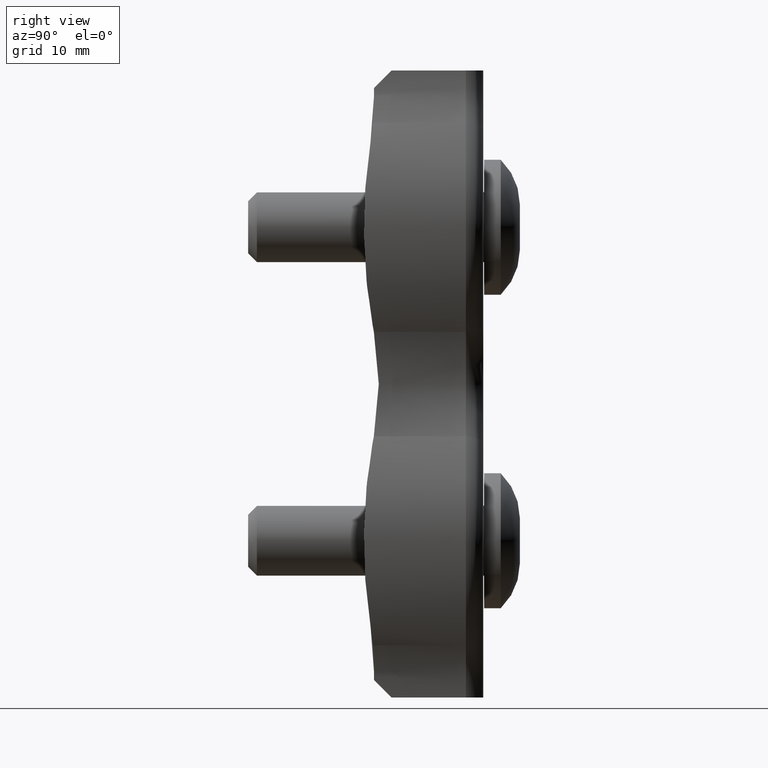
[diagram: clean part render]
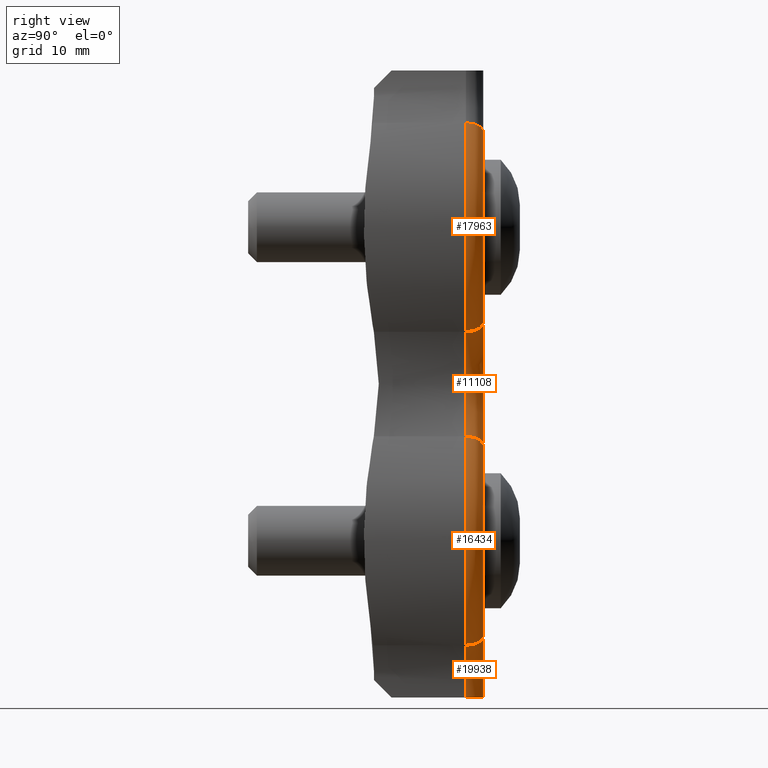
[diagram: same view with one multi-face feature highlighted, each face labeled with its STEP entity id]
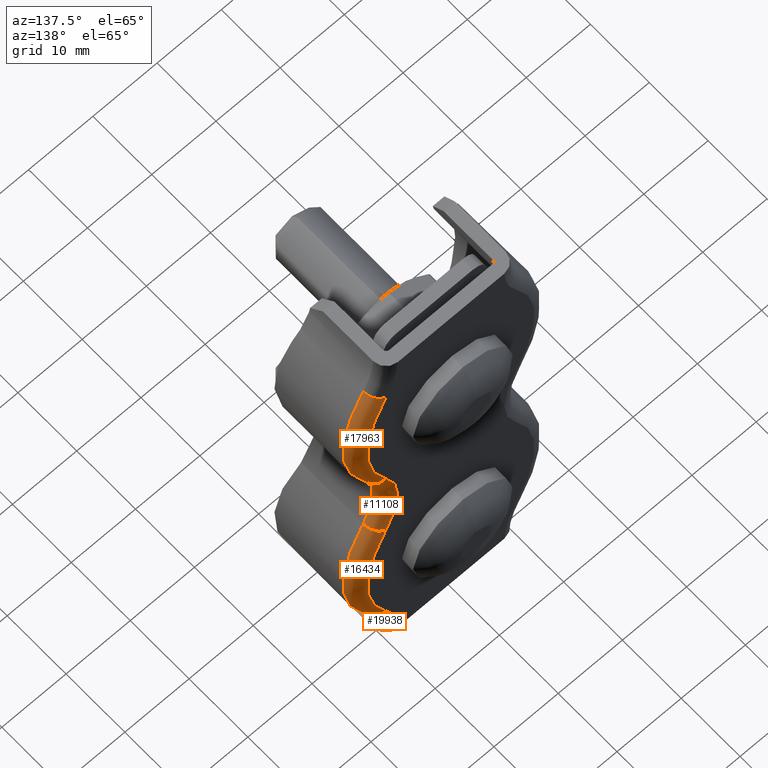
[diagram: same view with one multi-face feature highlighted, each face labeled with its STEP entity id]
A machine part, right view. The highlighted faces form ONE feature: a constant-radius fillet chain: 4 tangent blend faces with common blend radius 2 mm. The faces share edges in the B-rep.
A second angle (auxiliary view) of the same feature is appended — it is thin or edge-on in the first view.
Their STEP definitions:
[1] entity #11108 (Torus):
#33 = CIRCLE ( 'NONE', #21364, 12.27269503546099116 ) ;
#212 = DIRECTION ( 'NONE',  ( -0.8723453436967265606, 0.000000000000000000, -0.4888901730763671183 ) ) ;
#575 = CARTESIAN_POINT ( 'NONE',  ( 22.57269503546099187, -0.2000000000000000944, 0.000000000000000000 ) ) ;
#3490 = AXIS2_PLACEMENT_3D ( 'NONE', #19204, #15218, #4217 ) ;
#3506 = DIRECTION ( 'NONE',  ( -0.8723453436967263386, 0.000000000000000000, 0.4888901730763674514 ) ) ;
#4217 = DIRECTION ( 'NONE',  ( 0.000000000000000000, 0.000000000000000000, 1.000000000000000000 ) ) ;
#5278 = DIRECTION ( 'NONE',  ( 0.000000000000000000, 0.000000000000000000, 1.000000000000000000 ) ) ;
#5942 = ORIENTED_EDGE ( 'NONE', *, *, #19564, .T. ) ;
#8020 = DIRECTION ( 'NONE',  ( 0.000000000000000000, 0.000000000000000000, 1.000000000000000000 ) ) ;
#9083 = TOROIDAL_SURFACE ( 'NONE', #3490, 14.27269503546099116, 2.000000000000000000 ) ;
#9460 = CIRCLE ( 'NONE', #20300, 2.000000000000000000 ) ;
#9638 = DIRECTION ( 'NONE',  ( 0.4888901730763675069, 0.000000000000000000, -0.8723453436967264496 ) ) ;
#9681 = AXIS2_PLACEMENT_3D ( 'NONE', #16525, #24067, #5278 ) ;
#10771 = CARTESIAN_POINT ( 'NONE',  ( 11.86666666666666714, -0.2000000000000000944, -6.000000000000000888 ) ) ;
#11000 = CARTESIAN_POINT ( 'NONE',  ( 10.12197597927321446, 1.800000000000000044, -6.977780346152735902 ) ) ;
#11108 = ADVANCED_FACE ( 'NONE', ( #19390 ), #9083, .T. ) ;
#11172 = VERTEX_POINT ( 'NONE', #19698 ) ;
#11819 = DIRECTION ( 'NONE',  ( 0.000000000000000000, 1.000000000000000000, 0.000000000000000000 ) ) ;
#14748 = CARTESIAN_POINT ( 'NONE',  ( 10.12197597927321446, -0.2000000000000000944, 6.977780346152735014 ) ) ;
#15218 = DIRECTION ( 'NONE',  ( 0.000000000000000000, 1.000000000000000000, 0.000000000000000000 ) ) ;
#15611 = VERTEX_POINT ( 'NONE', #11000 ) ;
#15960 = AXIS2_PLACEMENT_3D ( 'NONE', #14748, #24044, #3506 ) ;
#15964 = VERTEX_POINT ( 'NONE', #19618 ) ;
#16525 = CARTESIAN_POINT ( 'NONE',  ( 22.57269503546099187, 1.800000000000000044, 0.000000000000000000 ) ) ;
#16531 = ORIENTED_EDGE ( 'NONE', *, *, #22311, .F. ) ;
#17743 = CIRCLE ( 'NONE', #15960, 2.000000000000000444 ) ;
#18845 = EDGE_CURVE ( 'NONE', #11172, #15611, #21579, .T. ) ;
#19204 = CARTESIAN_POINT ( 'NONE',  ( 22.57269503546099187, -0.2000000000000000944, 0.000000000000000000 ) ) ;
#19390 = FACE_OUTER_BOUND ( 'NONE', #20740, .T. ) ;
#19564 = EDGE_CURVE ( 'NONE', #11172, #15964, #17743, .T. ) ;
#19618 = CARTESIAN_POINT ( 'NONE',  ( 11.86666666666667069, -0.2000000000000000944, 5.999999999999998224 ) ) ;
#19698 = CARTESIAN_POINT ( 'NONE',  ( 10.12197597927321446, 1.800000000000000044, 6.977780346152735014 ) ) ;
#20284 = ORIENTED_EDGE ( 'NONE', *, *, #18845, .F. ) ;
#20300 = AXIS2_PLACEMENT_3D ( 'NONE', #22693, #9638, #212 ) ;
#20740 = EDGE_LOOP ( 'NONE', ( #5942, #20982, #16531, #20284 ) ) ;
#20982 = ORIENTED_EDGE ( 'NONE', *, *, #24182, .F. ) ;
#21364 = AXIS2_PLACEMENT_3D ( 'NONE', #575, #11819, #8020 ) ;
#21579 = CIRCLE ( 'NONE', #9681, 14.27269503546099116 ) ;
#21614 = VERTEX_POINT ( 'NONE', #10771 ) ;
#22311 = EDGE_CURVE ( 'NONE', #15611, #21614, #9460, .T. ) ;
#22693 = CARTESIAN_POINT ( 'NONE',  ( 10.12197597927321446, -0.2000000000000000944, -6.977780346152735902 ) ) ;
#24044 = DIRECTION ( 'NONE',  ( -0.4888901730763675069, 0.000000000000000000, -0.8723453436967264496 ) ) ;
#24067 = DIRECTION ( 'NONE',  ( -0.000000000000000000, -1.000000000000000000, -0.000000000000000000 ) ) ;
#24182 = EDGE_CURVE ( 'NONE', #21614, #15964, #33, .T. ) ;
[2] entity #16434 (Torus):
#16 = CARTESIAN_POINT ( 'NONE',  ( 10.12197597927321446, 1.800000000000000044, -29.02221965384726232 ) ) ;
#212 = DIRECTION ( 'NONE',  ( -0.8723453436967265606, 0.000000000000000000, -0.4888901730763671183 ) ) ;
#2211 = TOROIDAL_SURFACE ( 'NONE', #8703, 22.54539007092198943, 2.000000000000000000 ) ;
#4318 = ORIENTED_EDGE ( 'NONE', *, *, #19601, .F. ) ;
#4871 = EDGE_LOOP ( 'NONE', ( #19424, #14828, #19887, #4318 ) ) ;
#6092 = AXIS2_PLACEMENT_3D ( 'NONE', #20458, #7357, #20534 ) ;
#6393 = VERTEX_POINT ( 'NONE', #16811 ) ;
#6500 = EDGE_CURVE ( 'NONE', #6393, #21614, #11083, .T. ) ;
#7167 = AXIS2_PLACEMENT_3D ( 'NONE', #20391, #16823, #7206 ) ;
#7206 = DIRECTION ( 'NONE',  ( 0.000000000000000000, 0.000000000000000000, 1.000000000000000000 ) ) ;
#7357 = DIRECTION ( 'NONE',  ( -0.000000000000000000, -1.000000000000000000, -0.000000000000000000 ) ) ;
#8703 = AXIS2_PLACEMENT_3D ( 'NONE', #9791, #11663, #21289 ) ;
#9460 = CIRCLE ( 'NONE', #20300, 2.000000000000000000 ) ;
#9638 = DIRECTION ( 'NONE',  ( 0.4888901730763675069, 0.000000000000000000, -0.8723453436967264496 ) ) ;
#9791 = CARTESIAN_POINT ( 'NONE',  ( -9.545390070921987657, -0.2000000000000000944, -18.00000000000000000 ) ) ;
#10397 = DIRECTION ( 'NONE',  ( -0.4888901730763667852, 0.000000000000000000, -0.8723453436967266716 ) ) ;
#10771 = CARTESIAN_POINT ( 'NONE',  ( 11.86666666666666714, -0.2000000000000000944, -6.000000000000000888 ) ) ;
#11000 = CARTESIAN_POINT ( 'NONE',  ( 10.12197597927321446, 1.800000000000000044, -6.977780346152735902 ) ) ;
#11083 = CIRCLE ( 'NONE', #6092, 24.54539007092198943 ) ;
#11663 = DIRECTION ( 'NONE',  ( 0.000000000000000000, 1.000000000000000000, 0.000000000000000000 ) ) ;
#12204 = FACE_OUTER_BOUND ( 'NONE', #4871, .T. ) ;
#14054 = DIRECTION ( 'NONE',  ( -0.8723453436967268937, 0.000000000000000000, 0.4888901730763663966 ) ) ;
#14258 = CIRCLE ( 'NONE', #18030, 1.999999999999999334 ) ;
#14828 = ORIENTED_EDGE ( 'NONE', *, *, #6500, .F. ) ;
#15291 = VERTEX_POINT ( 'NONE', #16 ) ;
#15611 = VERTEX_POINT ( 'NONE', #11000 ) ;
#15918 = EDGE_CURVE ( 'NONE', #15291, #6393, #14258, .T. ) ;
#16434 = ADVANCED_FACE ( 'NONE', ( #12204 ), #2211, .T. ) ;
#16811 = CARTESIAN_POINT ( 'NONE',  ( 11.86666666666667069, -0.2000000000000000944, -30.00000000000000000 ) ) ;
#16823 = DIRECTION ( 'NONE',  ( 0.000000000000000000, 1.000000000000000000, 0.000000000000000000 ) ) ;
#18030 = AXIS2_PLACEMENT_3D ( 'NONE', #23506, #10397, #14054 ) ;
#19424 = ORIENTED_EDGE ( 'NONE', *, *, #22311, .T. ) ;
#19601 = EDGE_CURVE ( 'NONE', #15611, #15291, #20130, .T. ) ;
#19887 = ORIENTED_EDGE ( 'NONE', *, *, #15918, .F. ) ;
#20130 = CIRCLE ( 'NONE', #7167, 22.54539007092198943 ) ;
#20300 = AXIS2_PLACEMENT_3D ( 'NONE', #22693, #9638, #212 ) ;
#20391 = CARTESIAN_POINT ( 'NONE',  ( -9.545390070921987657, 1.800000000000000044, -18.00000000000000000 ) ) ;
#20458 = CARTESIAN_POINT ( 'NONE',  ( -9.545390070921987657, -0.2000000000000000944, -18.00000000000000000 ) ) ;
#20534 = DIRECTION ( 'NONE',  ( -9.187633654441004382E-16, 0.000000000000000000, 1.000000000000000000 ) ) ;
#21289 = DIRECTION ( 'NONE',  ( 0.000000000000000000, 0.000000000000000000, 1.000000000000000000 ) ) ;
#21614 = VERTEX_POINT ( 'NONE', #10771 ) ;
#22311 = EDGE_CURVE ( 'NONE', #15611, #21614, #9460, .T. ) ;
#22693 = CARTESIAN_POINT ( 'NONE',  ( 10.12197597927321446, -0.2000000000000000944, -6.977780346152735902 ) ) ;
#23506 = CARTESIAN_POINT ( 'NONE',  ( 10.12197597927321446, -0.2000000000000000944, -29.02221965384726232 ) ) ;
[3] entity #19938 (Torus):
#16 = CARTESIAN_POINT ( 'NONE',  ( 10.12197597927321446, 1.800000000000000044, -29.02221965384726232 ) ) ;
#1259 = CIRCLE ( 'NONE', #3349, 12.27269503546098761 ) ;
#2891 = DIRECTION ( 'NONE',  ( -0.000000000000000000, -0.000000000000000000, -1.000000000000000000 ) ) ;
#3318 = ORIENTED_EDGE ( 'NONE', *, *, #9029, .F. ) ;
#3349 = AXIS2_PLACEMENT_3D ( 'NONE', #16827, #9258, #10855 ) ;
#3492 = CARTESIAN_POINT ( 'NONE',  ( 8.299999999999991829, 1.800000000000000044, -36.00000000000000000 ) ) ;
#3713 = DIRECTION ( 'NONE',  ( -0.000000000000000000, -1.000000000000000000, -0.000000000000000000 ) ) ;
#6337 = CARTESIAN_POINT ( 'NONE',  ( 8.300000000000000711, -0.2000000000000000944, -36.00000000000000000 ) ) ;
#6393 = VERTEX_POINT ( 'NONE', #16811 ) ;
#6623 = ORIENTED_EDGE ( 'NONE', *, *, #15918, .T. ) ;
#7123 = EDGE_CURVE ( 'NONE', #15291, #8607, #10793, .T. ) ;
#7361 = CIRCLE ( 'NONE', #10090, 2.000000000000000000 ) ;
#8217 = DIRECTION ( 'NONE',  ( 1.000000000000000000, 0.000000000000000000, 0.000000000000000000 ) ) ;
#8269 = ORIENTED_EDGE ( 'NONE', *, *, #14478, .F. ) ;
#8607 = VERTEX_POINT ( 'NONE', #3492 ) ;
#9029 = EDGE_CURVE ( 'NONE', #8607, #10912, #7361, .T. ) ;
#9258 = DIRECTION ( 'NONE',  ( 0.000000000000000000, 1.000000000000000000, 0.000000000000000000 ) ) ;
#9391 = DIRECTION ( 'NONE',  ( 0.000000000000000000, 1.000000000000000000, 0.000000000000000000 ) ) ;
#10090 = AXIS2_PLACEMENT_3D ( 'NONE', #6337, #2891, #8217 ) ;
#10397 = DIRECTION ( 'NONE',  ( -0.4888901730763667852, 0.000000000000000000, -0.8723453436967266716 ) ) ;
#10755 = CARTESIAN_POINT ( 'NONE',  ( 10.30000000000000071, -0.2000000000000000944, -36.00000000000000000 ) ) ;
#10793 = CIRCLE ( 'NONE', #17455, 14.27269503546098939 ) ;
#10855 = DIRECTION ( 'NONE',  ( 0.000000000000000000, 0.000000000000000000, 1.000000000000000000 ) ) ;
#10912 = VERTEX_POINT ( 'NONE', #10755 ) ;
#13567 = ORIENTED_EDGE ( 'NONE', *, *, #7123, .F. ) ;
#14054 = DIRECTION ( 'NONE',  ( -0.8723453436967268937, 0.000000000000000000, 0.4888901730763663966 ) ) ;
#14258 = CIRCLE ( 'NONE', #18030, 1.999999999999999334 ) ;
#14478 = EDGE_CURVE ( 'NONE', #10912, #6393, #1259, .T. ) ;
#15291 = VERTEX_POINT ( 'NONE', #16 ) ;
#15918 = EDGE_CURVE ( 'NONE', #15291, #6393, #14258, .T. ) ;
#16811 = CARTESIAN_POINT ( 'NONE',  ( 11.86666666666667069, -0.2000000000000000944, -30.00000000000000000 ) ) ;
#16827 = CARTESIAN_POINT ( 'NONE',  ( 22.57269503546098832, -0.2000000000000000944, -36.00000000000000000 ) ) ;
#16866 = TOROIDAL_SURFACE ( 'NONE', #18064, 14.27269503546098761, 2.000000000000000000 ) ;
#17455 = AXIS2_PLACEMENT_3D ( 'NONE', #18556, #3713, #20746 ) ;
#18030 = AXIS2_PLACEMENT_3D ( 'NONE', #23506, #10397, #14054 ) ;
#18064 = AXIS2_PLACEMENT_3D ( 'NONE', #20671, #9391, #22519 ) ;
#18556 = CARTESIAN_POINT ( 'NONE',  ( 22.57269503546098832, 1.800000000000000044, -36.00000000000000000 ) ) ;
#19938 = ADVANCED_FACE ( 'NONE', ( #20701 ), #16866, .T. ) ;
#20671 = CARTESIAN_POINT ( 'NONE',  ( 22.57269503546098832, -0.2000000000000000944, -36.00000000000000000 ) ) ;
#20701 = FACE_OUTER_BOUND ( 'NONE', #23264, .T. ) ;
#20746 = DIRECTION ( 'NONE',  ( 9.723312782438513927E-16, 0.000000000000000000, 1.000000000000000000 ) ) ;
#22519 = DIRECTION ( 'NONE',  ( 0.000000000000000000, 0.000000000000000000, 1.000000000000000000 ) ) ;
#23264 = EDGE_LOOP ( 'NONE', ( #6623, #8269, #3318, #13567 ) ) ;
#23506 = CARTESIAN_POINT ( 'NONE',  ( 10.12197597927321446, -0.2000000000000000944, -29.02221965384726232 ) ) ;
[4] entity #17963 (Torus):
#907 = CARTESIAN_POINT ( 'NONE',  ( -9.545390070921987657, 1.800000000000000044, 18.00000000000000000 ) ) ;
#1061 = ORIENTED_EDGE ( 'NONE', *, *, #11791, .F. ) ;
#1633 = DIRECTION ( 'NONE',  ( 0.000000000000000000, 0.000000000000000000, 1.000000000000000000 ) ) ;
#1806 = CARTESIAN_POINT ( 'NONE',  ( -9.545390070921987657, -0.2000000000000000944, 18.00000000000000000 ) ) ;
#3506 = DIRECTION ( 'NONE',  ( -0.8723453436967263386, 0.000000000000000000, 0.4888901730763674514 ) ) ;
#5578 = AXIS2_PLACEMENT_3D ( 'NONE', #18664, #11003, #1633 ) ;
#5688 = FACE_OUTER_BOUND ( 'NONE', #12174, .T. ) ;
#5704 = DIRECTION ( 'NONE',  ( -0.000000000000000000, -1.000000000000000000, -0.000000000000000000 ) ) ;
#7193 = TOROIDAL_SURFACE ( 'NONE', #5578, 22.54539007092198943, 2.000000000000000000 ) ;
#8262 = DIRECTION ( 'NONE',  ( 0.000000000000000000, 1.000000000000000000, 0.000000000000000000 ) ) ;
#10385 = CIRCLE ( 'NONE', #17235, 1.999999999999999334 ) ;
#11003 = DIRECTION ( 'NONE',  ( 0.000000000000000000, 1.000000000000000000, 0.000000000000000000 ) ) ;
#11172 = VERTEX_POINT ( 'NONE', #19698 ) ;
#11306 = CARTESIAN_POINT ( 'NONE',  ( 10.12197597927321269, -0.2000000000000000944, 29.02221965384726587 ) ) ;
#11791 = EDGE_CURVE ( 'NONE', #15964, #17059, #17285, .T. ) ;
#12073 = ORIENTED_EDGE ( 'NONE', *, *, #12627, .F. ) ;
#12174 = EDGE_LOOP ( 'NONE', ( #18706, #1061, #18012, #12073 ) ) ;
#12215 = VERTEX_POINT ( 'NONE', #16477 ) ;
#12627 = EDGE_CURVE ( 'NONE', #12215, #11172, #16395, .T. ) ;
#14484 = AXIS2_PLACEMENT_3D ( 'NONE', #907, #8262, #15904 ) ;
#14748 = CARTESIAN_POINT ( 'NONE',  ( 10.12197597927321446, -0.2000000000000000944, 6.977780346152735014 ) ) ;
#15904 = DIRECTION ( 'NONE',  ( 0.000000000000000000, 0.000000000000000000, 1.000000000000000000 ) ) ;
#15960 = AXIS2_PLACEMENT_3D ( 'NONE', #14748, #24044, #3506 ) ;
#15964 = VERTEX_POINT ( 'NONE', #19618 ) ;
#16144 = CARTESIAN_POINT ( 'NONE',  ( 11.86666666666666536, -0.2000000000000000944, 30.00000000000000355 ) ) ;
#16395 = CIRCLE ( 'NONE', #14484, 22.54539007092199299 ) ;
#16477 = CARTESIAN_POINT ( 'NONE',  ( 10.12197597927321269, 1.800000000000000044, 29.02221965384726587 ) ) ;
#17059 = VERTEX_POINT ( 'NONE', #16144 ) ;
#17215 = DIRECTION ( 'NONE',  ( 0.4888901730763681175, 0.000000000000000000, -0.8723453436967258945 ) ) ;
#17235 = AXIS2_PLACEMENT_3D ( 'NONE', #11306, #17215, #18900 ) ;
#17285 = CIRCLE ( 'NONE', #17838, 24.54539007092199299 ) ;
#17743 = CIRCLE ( 'NONE', #15960, 2.000000000000000444 ) ;
#17838 = AXIS2_PLACEMENT_3D ( 'NONE', #1806, #5704, #22546 ) ;
#17963 = ADVANCED_FACE ( 'NONE', ( #5688 ), #7193, .T. ) ;
#18012 = ORIENTED_EDGE ( 'NONE', *, *, #19564, .F. ) ;
#18664 = CARTESIAN_POINT ( 'NONE',  ( -9.545390070921987657, -0.2000000000000000944, 18.00000000000000000 ) ) ;
#18706 = ORIENTED_EDGE ( 'NONE', *, *, #19711, .T. ) ;
#18900 = DIRECTION ( 'NONE',  ( -0.8723453436967260055, 0.000000000000000000, -0.4888901730763681175 ) ) ;
#19564 = EDGE_CURVE ( 'NONE', #11172, #15964, #17743, .T. ) ;
#19618 = CARTESIAN_POINT ( 'NONE',  ( 11.86666666666667069, -0.2000000000000000944, 5.999999999999998224 ) ) ;
#19698 = CARTESIAN_POINT ( 'NONE',  ( 10.12197597927321446, 1.800000000000000044, 6.977780346152735014 ) ) ;
#19711 = EDGE_CURVE ( 'NONE', #12215, #17059, #10385, .T. ) ;
#22546 = DIRECTION ( 'NONE',  ( 0.000000000000000000, 0.000000000000000000, 1.000000000000000000 ) ) ;
#24044 = DIRECTION ( 'NONE',  ( -0.4888901730763675069, 0.000000000000000000, -0.8723453436967264496 ) ) ;